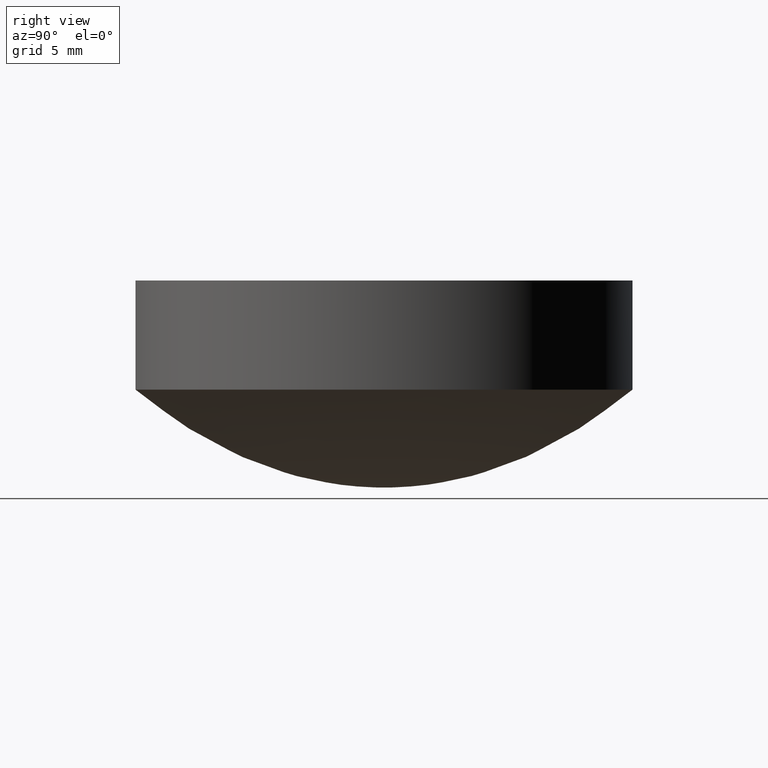
[diagram: clean part render]
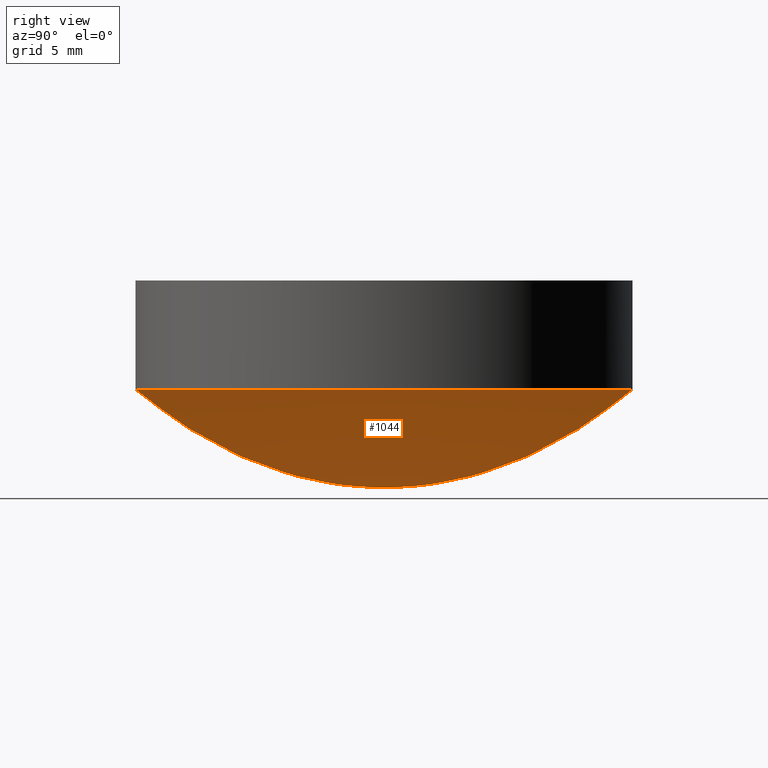
[diagram: same view with one face highlighted and labeled with its STEP entity id]
A machine part, right view. The second image highlights one B-rep face of the part: STEP entity #1044.
In plain terms, the highlighted face is a freeform B-spline surface patch.
Its self-contained STEP definition (entity closure, byte-faithful):
#3 = CARTESIAN_POINT ( 'NONE',  ( 8.802148868871600606E-16, 3.593750000000000000, 0.3204237037430899826 ) ) ;
#4 = CARTESIAN_POINT ( 'NONE',  ( 24.68749999999999645, -12.34375000000000355, 3.928162119119019913 ) ) ;
#7 = CARTESIAN_POINT ( 'NONE',  ( 3.125000000000000000, 1.562499999999999334, 0.05991628856594809899 ) ) ;
#8 = CARTESIAN_POINT ( 'NONE',  ( -1.760429773774320121E-15, -14.37500000000000000, 5.404119466681040151 ) ) ;
#12 = CARTESIAN_POINT ( 'NONE',  ( 5.000000000000000000, 2.499999999999998668, 0.1544825556000629929 ) ) ;
#13 = CARTESIAN_POINT ( 'NONE',  ( 19.06249999999999645, -9.531250000000001776, 2.304130439600900360 ) ) ;
#15 = CARTESIAN_POINT ( 'NONE',  ( 0.000000000000000000, 3.593750000000000000, 0.3204237037430899826 ) ) ;
#16 = CARTESIAN_POINT ( 'NONE',  ( -1.530808498934191571E-16, -1.250000000000000000, 0.03811938227230710075 ) ) ;
#19 = CARTESIAN_POINT ( 'NONE',  ( -1.167241480437320959E-15, -9.531250000000000000, 2.304130439600899916 ) ) ;
#23 = CARTESIAN_POINT ( 'NONE',  ( 9.567553118338697255E-16, 3.906250000000000000, 0.3789155898487329699 ) ) ;
#25 = CARTESIAN_POINT ( 'NONE',  ( 20.93749999999999645, -10.46875000000000178, 2.793584604150720629 ) ) ;
#30 = CARTESIAN_POINT ( 'NONE',  ( 1.250000000000000000, 0.6249999999999996669, 0.009073437160893050787 ) ) ;
#33 = CARTESIAN_POINT ( 'NONE',  ( 17.50000000000000355, 8.749999999999998224, 1.934500196912620096 ) ) ;
#37 = CARTESIAN_POINT ( 'NONE',  ( 2.219672323454577321E-15, 9.062500000000000000, 2.078235659220740050 ) ) ;
#42 = CARTESIAN_POINT ( 'NONE',  ( 10.93749999999999822, -5.468750000000001776, 0.7461025201455739886 ) ) ;
#46 = AXIS2_PLACEMENT_3D ( 'NONE', #199, #120, #447 ) ;
#52 = CARTESIAN_POINT ( 'NONE',  ( -1.760429773774320121E-15, -14.37500000000000000, 5.404119466681040151 ) ) ;
#54 = CARTESIAN_POINT ( 'NONE',  ( 0.000000000000000000, 9.687500000000000000, 2.382193981824380025 ) ) ;
#55 = CARTESIAN_POINT ( 'NONE',  ( -1.358592542804094825E-15, -11.09375000000000000, 3.148338256961699777 ) ) ;
#59 = CARTESIAN_POINT ( 'NONE',  ( 1.301187224094062724E-15, 5.312500000000000000, 0.7037350457089810440 ) ) ;
#62 = CARTESIAN_POINT ( 'NONE',  ( -2.678914873134835310E-16, -2.187500000000000000, 0.1180878847321280012 ) ) ;
#66 = CARTESIAN_POINT ( 'NONE',  ( 0.000000000000000000, 13.43750000000000000, 4.689925512592259871 ) ) ;
#67 = CARTESIAN_POINT ( 'NONE',  ( 1.186376586673998523E-15, 4.843750000000000000, 0.5841957991893280688 ) ) ;
#69 = CARTESIAN_POINT ( 'NONE',  ( -9.950255243072246565E-16, -8.125000000000000000, 1.663313903924069859 ) ) ;
#73 = ORIENTED_EDGE ( 'NONE', *, *, #183, .F. ) ;
#74 = CARTESIAN_POINT ( 'NONE',  ( 1.798699986247674855E-15, 7.343750000000000000, 1.354404919990950029 ) ) ;
#77 = CARTESIAN_POINT ( 'NONE',  ( 3.138157422815092510E-15, 12.81250000000000000, 4.245381271204740514 ) ) ;
#80 = CARTESIAN_POINT ( 'NONE',  ( 0.000000000000000000, 12.81250000000000000, 4.245381271204740514 ) ) ;
#81 = CARTESIAN_POINT ( 'NONE',  ( 1.913510623667739451E-15, 7.812500000000000000, 1.535767496166519974 ) ) ;
#83 = CARTESIAN_POINT ( 'NONE',  ( 28.43749999999999645, 14.21874999999999467, 5.281080162096809971 ) ) ;
#86 = CARTESIAN_POINT ( 'NONE',  ( 0.000000000000000000, 3.125000000000000000, 0.2419397072312180208 ) ) ;
#87 = CARTESIAN_POINT ( 'NONE',  ( -3.061616997868383141E-16, -2.500000000000000000, 0.1544825556000629929 ) ) ;
#88 = CARTESIAN_POINT ( 'NONE',  ( 24.06249999999999645, 12.03124999999999467, 3.724266490961300136 ) ) ;
#92 = CARTESIAN_POINT ( 'NONE',  ( 3.437499999999998668, -1.718750000000000444, 0.07263478165185099922 ) ) ;
#95 = CARTESIAN_POINT ( 'NONE',  ( 4.062499999999999112, -2.031250000000000444, 0.1017205799872320099 ) ) ;
#96 = CARTESIAN_POINT ( 'NONE',  ( 28.75000000000000000, 14.37499999999999467, 5.404119466681040151 ) ) ;
#102 = CARTESIAN_POINT ( 'NONE',  ( 6.249999999999999112, -3.125000000000001332, 0.2419397072312180208 ) ) ;
#103 = CARTESIAN_POINT ( 'NONE',  ( 20.31250000000000000, -10.15625000000000355, 2.624790582178630149 ) ) ;
#107 = CARTESIAN_POINT ( 'NONE',  ( -5.357829746269670620E-16, -4.375000000000000000, 0.4759476878725200089 ) ) ;
#108 = CARTESIAN_POINT ( 'NONE',  ( -1.339457436567417458E-15, -10.93750000000000000, 3.057488923424939831 ) ) ;
#111 =( BOUNDED_SURFACE ( )  B_SPLINE_SURFACE ( 3, 3, ( 
 ( #1010, #917, #761, #1004 ),
 ( #1079, #156, #508, #663 ),
 ( #588, #429, #757, #487 ),
 ( #8, #417, #96, #425 ),
 ( #341, #494, #83, #259 ),
 ( #335, #161, #421, #567 ),
 ( #1085, #500, #676, #929 ),
 ( #1071, #253, #837, #846 ),
 ( #573, #316, #824, #330 ),
 ( #1000, #237, #903, #323 ),
 ( #830, #166, #249, #77 ),
 ( #924, #410, #171, #657 ),
 ( #578, #4, #993, #504 ),
 ( #243, #911, #88, #841 ),
 ( #369, #278, #274, #700 ),
 ( #437, #182, #787, #869 ),
 ( #513, #694, #594, #536 ),
 ( #358, #771, #939, #933 ),
 ( #108, #445, #1028, #851 ),
 ( #776, #600, #188, #123 ),
 ( #1038, #25, #607, #433 ),
 ( #527, #103, #947, #520 ),
 ( #264, #197, #944, #283 ),
 ( #616, #353, #767, #1015 ),
 ( #19, #13, #1033, #856 ),
 ( #348, #783, #687, #612 ),
 ( #864, #530, #119, #37 ),
 ( #193, #1020, #33, #269 ),
 ( #861, #114, #682, #441 ),
 ( #365, #704, #952, #205 ),
 ( #557, #415, #750, #822 ),
 ( #154, #571, #290, #81 ),
 ( #241, #1069, #977, #308 ),
 ( #247, #320, #485, #74 ),
 ( #708, #971, #742, #901 ),
 ( #451, #622, #408, #1006 ),
 ( #1076, #655, #886, #139 ),
 ( #314, #328, #551, #1045 ),
 ( #661, #983, #989, #908 ),
 ( #998, #159, #492, #576 ),
 ( #648, #828, #915, #145 ),
 ( #792, #42, #374, #221 ),
 ( #470, #893, #807, #59 ),
 ( #394, #730, #1063, #478 ),
 ( #642, #227, #816, #67 ),
 ( #401, #736, #235, #565 ),
 ( #107, #1014, #937, #262 ),
 ( #352, #1009, #273, #756 ),
 ( #927, #436, #175, #23 ),
 ( #1025, #420, #581, #3 ),
 ( #432, #672, #357, #680 ),
 ( #922, #102, #775, #267 ),
 ( #691, #187, #346, #170 ),
 ( #334, #604, #164, #518 ),
 ( #87, #587, #12, #667 ),
 ( #497, #835, #252, #844 ),
 ( #1003, #95, #503, #840 ),
 ( #598, #92, #855, #685 ),
 ( #765, #257, #7, #592 ),
 ( #16, #181, #512, #338 ),
 ( #424, #770, #932, #850 ),
 ( #507, #428, #1019, #760 ),
 ( #526, #860, #30, #277 ),
 ( #113, #942, #440, #364 ),
 ( #699, #780, #1031, #192 ),
 ( #923, #339, #212, #540 ) ),
 .UNSPECIFIED., .F., .F., .F. ) 
 B_SPLINE_SURFACE_WITH_KNOTS ( ( 4, 2, 2, 2, 2, 2, 2, 2, 2, 2, 2, 2, 2, 2, 2, 2, 2, 2, 2, 2, 2, 2, 2, 2, 2, 2, 2, 2, 2, 2, 2, 2, 4 ),
 ( 4, 4 ),
 ( -1.000000000000000000, -0.9687500000000000000, -0.9375000000000000000, -0.9062500000000000000, -0.8750000000000000000, -0.8437500000000000000, -0.8125000000000000000, -0.7812500000000000000, -0.7500000000000000000, -0.7187500000000000000, -0.6875000000000000000, -0.6562500000000000000, -0.6250000000000000000, -0.5937500000000000000, -0.5625000000000000000, -0.5312500000000000000, -0.5000000000000000000, -0.4687500000000000000, -0.4375000000000000000, -0.4062500000000000000, -0.3750000000000000000, -0.3437500000000000000, -0.3125000000000000000, -0.2812500000000000000, -0.2500000000000000000, -0.2187500000000000000, -0.1875000000000000000, -0.1562500000000000000, -0.1250000000000000000, -0.09375000000000000000, -0.06250000000000000000, -0.03125000000000000000, 0.000000000000000000 ),
 ( 0.000000000000000000, 1.000000000000000000 ),
 .UNSPECIFIED. ) 
 GEOMETRIC_REPRESENTATION_ITEM ( )  RATIONAL_B_SPLINE_SURFACE ( (
 ( 1.000000000000000000, 0.3333333333333334259, 0.3333333333333334259, 1.000000000000000000),
 ( 1.000000000000000000, 0.3333333333333334259, 0.3333333333333334259, 1.000000000000000000),
 ( 1.000000000000000000, 0.3333333333333334259, 0.3333333333333334259, 1.000000000000000000),
 ( 1.000000000000000000, 0.3333333333333334259, 0.3333333333333334259, 1.000000000000000000),
 ( 1.000000000000000000, 0.3333333333333334259, 0.3333333333333334259, 1.000000000000000000),
 ( 1.000000000000000000, 0.3333333333333334259, 0.3333333333333334259, 1.000000000000000000),
 ( 1.000000000000000000, 0.3333333333333334259, 0.3333333333333334259, 1.000000000000000000),
 ( 1.000000000000000000, 0.3333333333333334259, 0.3333333333333334259, 1.000000000000000000),
 ( 1.000000000000000000, 0.3333333333333334259, 0.3333333333333334259, 1.000000000000000000),
 ( 1.000000000000000000, 0.3333333333333334259, 0.3333333333333334259, 1.000000000000000000),
 ( 1.000000000000000000, 0.3333333333333334259, 0.3333333333333334259, 1.000000000000000000),
 ( 1.000000000000000000, 0.3333333333333334259, 0.3333333333333334259, 1.000000000000000000),
 ( 1.000000000000000000, 0.3333333333333334259, 0.3333333333333334259, 1.000000000000000000),
 ( 1.000000000000000000, 0.3333333333333334259, 0.3333333333333334259, 1.000000000000000000),
 ( 1.000000000000000000, 0.3333333333333334259, 0.3333333333333334259, 1.000000000000000000),
 ( 1.000000000000000000, 0.3333333333333334259, 0.3333333333333334259, 1.000000000000000000),
 ( 1.000000000000000000, 0.3333333333333334259, 0.3333333333333334259, 1.000000000000000000),
 ( 1.000000000000000000, 0.3333333333333334259, 0.3333333333333334259, 1.000000000000000000),
 ( 1.000000000000000000, 0.3333333333333334259, 0.3333333333333334259, 1.000000000000000000),
 ( 1.000000000000000000, 0.3333333333333334259, 0.3333333333333334259, 1.000000000000000000),
 ( 1.000000000000000000, 0.3333333333333334259, 0.3333333333333334259, 1.000000000000000000),
 ( 1.000000000000000000, 0.3333333333333334259, 0.3333333333333334259, 1.000000000000000000),
 ( 1.000000000000000000, 0.3333333333333334259, 0.3333333333333334259, 1.000000000000000000),
 ( 1.000000000000000000, 0.3333333333333334259, 0.3333333333333334259, 1.000000000000000000),
 ( 1.000000000000000000, 0.3333333333333334259, 0.3333333333333334259, 1.000000000000000000),
 ( 1.000000000000000000, 0.3333333333333334259, 0.3333333333333334259, 1.000000000000000000),
 ( 1.000000000000000000, 0.3333333333333334259, 0.3333333333333334259, 1.000000000000000000),
 ( 1.000000000000000000, 0.3333333333333334259, 0.3333333333333334259, 1.000000000000000000),
 ( 1.000000000000000000, 0.3333333333333334259, 0.3333333333333334259, 1.000000000000000000),
 ( 1.000000000000000000, 0.3333333333333334259, 0.3333333333333334259, 1.000000000000000000),
 ( 1.000000000000000000, 0.3333333333333334259, 0.3333333333333334259, 1.000000000000000000),
 ( 1.000000000000000000, 0.3333333333333334259, 0.3333333333333334259, 1.000000000000000000),
 ( 1.000000000000000000, 0.3333333333333334259, 0.3333333333333334259, 1.000000000000000000),
 ( 1.000000000000000000, 0.3333333333333334259, 0.3333333333333334259, 1.000000000000000000),
 ( 1.000000000000000000, 0.3333333333333334259, 0.3333333333333334259, 1.000000000000000000),
 ( 1.000000000000000000, 0.3333333333333334259, 0.3333333333333334259, 1.000000000000000000),
 ( 1.000000000000000000, 0.3333333333333334259, 0.3333333333333334259, 1.000000000000000000),
 ( 1.000000000000000000, 0.3333333333333334259, 0.3333333333333334259, 1.000000000000000000),
 ( 1.000000000000000000, 0.3333333333333334259, 0.3333333333333334259, 1.000000000000000000),
 ( 1.000000000000000000, 0.3333333333333334259, 0.3333333333333334259, 1.000000000000000000),
 ( 1.000000000000000000, 0.3333333333333334259, 0.3333333333333334259, 1.000000000000000000),
 ( 1.000000000000000000, 0.3333333333333334259, 0.3333333333333334259, 1.000000000000000000),
 ( 1.000000000000000000, 0.3333333333333334259, 0.3333333333333334259, 1.000000000000000000),
 ( 1.000000000000000000, 0.3333333333333334259, 0.3333333333333334259, 1.000000000000000000),
 ( 1.000000000000000000, 0.3333333333333334259, 0.3333333333333334259, 1.000000000000000000),
 ( 1.000000000000000000, 0.3333333333333334259, 0.3333333333333334259, 1.000000000000000000),
 ( 1.000000000000000000, 0.3333333333333334259, 0.3333333333333334259, 1.000000000000000000),
 ( 1.000000000000000000, 0.3333333333333334259, 0.3333333333333334259, 1.000000000000000000),
 ( 1.000000000000000000, 0.3333333333333334259, 0.3333333333333334259, 1.000000000000000000),
 ( 1.000000000000000000, 0.3333333333333334259, 0.3333333333333334259, 1.000000000000000000),
 ( 1.000000000000000000, 0.3333333333333334259, 0.3333333333333334259, 1.000000000000000000),
 ( 1.000000000000000000, 0.3333333333333334259, 0.3333333333333334259, 1.000000000000000000),
 ( 1.000000000000000000, 0.3333333333333334259, 0.3333333333333334259, 1.000000000000000000),
 ( 1.000000000000000000, 0.3333333333333334259, 0.3333333333333334259, 1.000000000000000000),
 ( 1.000000000000000000, 0.3333333333333334259, 0.3333333333333334259, 1.000000000000000000),
 ( 1.000000000000000000, 0.3333333333333334259, 0.3333333333333334259, 1.000000000000000000),
 ( 1.000000000000000000, 0.3333333333333334259, 0.3333333333333334259, 1.000000000000000000),
 ( 1.000000000000000000, 0.3333333333333334259, 0.3333333333333334259, 1.000000000000000000),
 ( 1.000000000000000000, 0.3333333333333334259, 0.3333333333333334259, 1.000000000000000000),
 ( 1.000000000000000000, 0.3333333333333334259, 0.3333333333333334259, 1.000000000000000000),
 ( 1.000000000000000000, 0.3333333333333334259, 0.3333333333333334259, 1.000000000000000000),
 ( 1.000000000000000000, 0.3333333333333334259, 0.3333333333333334259, 1.000000000000000000),
 ( 1.000000000000000000, 0.3333333333333334259, 0.3333333333333334259, 1.000000000000000000),
 ( 1.000000000000000000, 0.3333333333333334259, 0.3333333333333334259, 1.000000000000000000),
 ( 1.000000000000000000, 0.3333333333333334259, 0.3333333333333334259, 1.000000000000000000),
 ( 1.000000000000000000, 0.3333333333333334259, 0.3333333333333334259, 1.000000000000000000) ) ) 
 REPRESENTATION_ITEM ( '' )  SURFACE ( )  );
#113 = CARTESIAN_POINT ( 'NONE',  ( -3.827021247335478926E-17, -0.3125000000000000000, 0.001814438714157010036 ) ) ;
#114 = CARTESIAN_POINT ( 'NONE',  ( 17.18749999999999645, -8.593750000000001776, 1.864680354000979978 ) ) ;
#119 = CARTESIAN_POINT ( 'NONE',  ( 18.12500000000000000, 9.062499999999994671, 2.078235659220740050 ) ) ;
#120 = DIRECTION ( 'NONE',  ( 0.000000000000000000, 0.000000000000000000, 1.000000000000000000 ) ) ;
#123 = CARTESIAN_POINT ( 'NONE',  ( 2.602374448188125448E-15, 10.62500000000000000, 2.880112097631259971 ) ) ;
#129 = CARTESIAN_POINT ( 'NONE',  ( -8.802148868871600606E-16, -7.187500000000000000, 1.296588552126309857 ) ) ;
#132 = CARTESIAN_POINT ( 'NONE',  ( -1.243781905384030821E-15, -10.15625000000000000, 2.624790582178630149 ) ) ;
#134 = CARTESIAN_POINT ( 'NONE',  ( 0.000000000000000000, 13.75000000000000000, 4.921610680584799447 ) ) ;
#135 = CARTESIAN_POINT ( 'NONE',  ( -1.626484030117578356E-15, -13.28125000000000000, 4.576455430452989859 ) ) ;
#138 = CARTESIAN_POINT ( 'NONE',  ( 0.000000000000000000, 14.84375000000000000, 5.783048222013719375 ) ) ;
#139 = CARTESIAN_POINT ( 'NONE',  ( 1.645619136354255920E-15, 6.718750000000000000, 1.130971694467530098 ) ) ;
#141 = CARTESIAN_POINT ( 'NONE',  ( -3.827021247335478803E-16, -3.125000000000000000, 0.2419397072312180208 ) ) ;
#145 = CARTESIAN_POINT ( 'NONE',  ( 1.415997861514127123E-15, 5.781250000000000000, 0.8346485693713959764 ) ) ;
#149 = CARTESIAN_POINT ( 'NONE',  ( -1.282052117857385357E-15, -10.46875000000000000, 2.793584604150720185 ) ) ;
#153 = CARTESIAN_POINT ( 'NONE',  ( 0.000000000000000000, 13.90625000000000000, 5.039825773088820071 ) ) ;
#154 = CARTESIAN_POINT ( 'NONE',  ( -9.567553118338697255E-16, -7.812500000000000000, 1.535767496166519974 ) ) ;
#156 = CARTESIAN_POINT ( 'NONE',  ( 29.68749999999998934, -14.84375000000000178, 5.783048222013719375 ) ) ;
#159 = CARTESIAN_POINT ( 'NONE',  ( 11.87499999999999645, -5.937500000000000888, 0.8808271430678311642 ) ) ;
#161 = CARTESIAN_POINT ( 'NONE',  ( 27.81249999999999289, -13.90625000000000178, 5.039825773088820071 ) ) ;
#164 = CARTESIAN_POINT ( 'NONE',  ( 5.312500000000000000, 2.656249999999998668, 0.1745099211040110065 ) ) ;
#166 = CARTESIAN_POINT ( 'NONE',  ( 25.62499999999998934, -12.81250000000000355, 4.245381271204740514 ) ) ;
#169 = CARTESIAN_POINT ( 'NONE',  ( 0.000000000000000000, 4.531250000000000000, 0.5107788002609389144 ) ) ;
#170 = CARTESIAN_POINT ( 'NONE',  ( 7.271340369937410268E-16, 2.968750000000000000, 0.2182384972824339964 ) ) ;
#171 = CARTESIAN_POINT ( 'NONE',  ( 25.00000000000000000, 12.49999999999999467, 4.032370676684720046 ) ) ;
#174 = CARTESIAN_POINT ( 'NONE',  ( 0.000000000000000000, 4.843750000000000000, 0.5841957991893280688 ) ) ;
#175 = CARTESIAN_POINT ( 'NONE',  ( 7.812499999999999112, 3.906249999999998224, 0.3789155898487330254 ) ) ;
#177 = CARTESIAN_POINT ( 'NONE',  ( -7.654042494670957853E-17, -0.6250000000000000000, 0.009073437160893050787 ) ) ;
#180 = CARTESIAN_POINT ( 'NONE',  ( 0.000000000000000000, 2.656250000000000000, 0.1745099211040110065 ) ) ;
#181 = CARTESIAN_POINT ( 'NONE',  ( 2.499999999999999556, -1.250000000000000222, 0.03811938227230710075 ) ) ;
#182 = CARTESIAN_POINT ( 'NONE',  ( 23.12499999999999645, -11.56250000000000355, 3.429657426633299533 ) ) ;
#183 = EDGE_CURVE ( 'NONE', #960, #703, #606, .T. ) ;
#187 = CARTESIAN_POINT ( 'NONE',  ( 5.937499999999998224, -2.968750000000000444, 0.2182384972824339686 ) ) ;
#188 = CARTESIAN_POINT ( 'NONE',  ( 21.25000000000000000, 10.62499999999999467, 2.880112097631259971 ) ) ;
#192 = CARTESIAN_POINT ( 'NONE',  ( 3.827021247335478926E-17, 0.1562500000000000000, 0.000000000000000000 ) ) ;
#193 = CARTESIAN_POINT ( 'NONE',  ( -1.071565949253934124E-15, -8.750000000000000000, 1.934500196912620096 ) ) ;
#197 = CARTESIAN_POINT ( 'NONE',  ( 19.99999999999999645, -10.00000000000000178, 2.542524052966009585 ) ) ;
#199 = CARTESIAN_POINT ( 'NONE',  ( 0.000000000000000000, 0.000000000000000000, 5.913487138830709533 ) ) ;
#204 = ORIENTED_EDGE ( 'NONE', *, *, #955, .T. ) ;
#205 = CARTESIAN_POINT ( 'NONE',  ( 2.028321261087804047E-15, 8.281250000000000000, 1.729087207217520072 ) ) ;
#210 = CARTESIAN_POINT ( 'NONE',  ( -3.252968060235156810E-16, -2.656250000000000000, 0.1745099211040110065 ) ) ;
#212 = CARTESIAN_POINT ( 'NONE',  ( 0.000000000000000000, 0.000000000000000000, 0.000000000000000000 ) ) ;
#214 = CARTESIAN_POINT ( 'NONE',  ( -1.683889348827610654E-15, -13.75000000000000000, 4.921610680584799447 ) ) ;
#217 = CARTESIAN_POINT ( 'NONE',  ( 0.000000000000000000, 13.28125000000000000, 4.576455430452989859 ) ) ;
#218 = CARTESIAN_POINT ( 'NONE',  ( -8.228095681771279600E-16, -6.718750000000000000, 1.130971694467530098 ) ) ;
#220 = CARTESIAN_POINT ( 'NONE',  ( 0.000000000000000000, 6.406250000000000000, 1.027049538622569980 ) ) ;
#221 = CARTESIAN_POINT ( 'NONE',  ( 1.339457436567417458E-15, 5.468750000000000000, 0.7461025201455739886 ) ) ;
#223 = CARTESIAN_POINT ( 'NONE',  ( -4.975127621536123282E-16, -4.062500000000000000, 0.4100160821757170559 ) ) ;
#227 = CARTESIAN_POINT ( 'NONE',  ( 9.687499999999998224, -4.843750000000000000, 0.5841957991893280688 ) ) ;
#230 = CARTESIAN_POINT ( 'NONE',  ( -1.014160630543902023E-15, -8.281250000000000000, 1.729087207217520072 ) ) ;
#234 = CARTESIAN_POINT ( 'NONE',  ( 0.000000000000000000, 7.656250000000000000, 1.473994392457079750 ) ) ;
#235 = CARTESIAN_POINT ( 'NONE',  ( 9.062500000000000000, 4.531249999999997335, 0.5107788002609389144 ) ) ;
#237 = CARTESIAN_POINT ( 'NONE',  ( 25.93749999999999289, -12.96875000000000178, 4.354183312459039890 ) ) ;
#241 = CARTESIAN_POINT ( 'NONE',  ( -9.376202055971923586E-16, -7.656250000000000000, 1.473994392457079750 ) ) ;
#243 = CARTESIAN_POINT ( 'NONE',  ( -1.473403180224159421E-15, -12.03125000000000000, 3.724266490961300136 ) ) ;
#246 = CARTESIAN_POINT ( 'NONE',  ( 0.000000000000000000, 1.718750000000000000, 0.07263478165185099922 ) ) ;
#247 = CARTESIAN_POINT ( 'NONE',  ( -8.993499931238374275E-16, -7.343750000000000000, 1.354404919990950029 ) ) ;
#249 = CARTESIAN_POINT ( 'NONE',  ( 25.62499999999999645, 12.81249999999999289, 4.245381271204740514 ) ) ;
#252 = CARTESIAN_POINT ( 'NONE',  ( 4.375000000000000888, 2.187499999999999556, 0.1180878847321280012 ) ) ;
#253 = CARTESIAN_POINT ( 'NONE',  ( 26.87499999999999289, -13.43750000000000178, 4.689925512592259871 ) ) ;
#256 = CARTESIAN_POINT ( 'NONE',  ( 0.000000000000000000, 2.500000000000000000, 0.1544825556000629929 ) ) ;
#257 = CARTESIAN_POINT ( 'NONE',  ( 3.124999999999999556, -1.562500000000000666, 0.05991628856594809899 ) ) ;
#259 = CARTESIAN_POINT ( 'NONE',  ( 3.482589335075285509E-15, 14.21875000000000000, 5.281080162096809971 ) ) ;
#262 = CARTESIAN_POINT ( 'NONE',  ( 1.071565949253934124E-15, 4.375000000000000000, 0.4759476878725200089 ) ) ;
#264 = CARTESIAN_POINT ( 'NONE',  ( -1.224646799147353256E-15, -10.00000000000000000, 2.542524052966009585 ) ) ;
#266 = CARTESIAN_POINT ( 'NONE',  ( 0.000000000000000000, 0.1562500000000000000, 0.000000000000000000 ) ) ;
#267 = CARTESIAN_POINT ( 'NONE',  ( 7.654042494670957606E-16, 3.125000000000000000, 0.2419397072312180208 ) ) ;
#269 = CARTESIAN_POINT ( 'NONE',  ( 2.143131898507868248E-15, 8.750000000000000000, 1.934500196912620096 ) ) ;
#273 = CARTESIAN_POINT ( 'NONE',  ( 8.125000000000000000, 4.062499999999998224, 0.4100160821757170559 ) ) ;
#274 = CARTESIAN_POINT ( 'NONE',  ( 23.74999999999999289, 11.87499999999999467, 3.624579417023470196 ) ) ;
#277 = CARTESIAN_POINT ( 'NONE',  ( 1.530808498934191571E-16, 0.6250000000000000000, 0.009073437160893050787 ) ) ;
#278 = CARTESIAN_POINT ( 'NONE',  ( 23.74999999999999289, -11.87500000000000178, 3.624579417023470196 ) ) ;
#283 = CARTESIAN_POINT ( 'NONE',  ( 2.449293598294706513E-15, 10.00000000000000000, 2.542524052966009585 ) ) ;
#290 = CARTESIAN_POINT ( 'NONE',  ( 15.62499999999999822, 7.812499999999996447, 1.535767496166519974 ) ) ;
#292 = CARTESIAN_POINT ( 'NONE',  ( -1.186376586673998523E-15, -9.687500000000000000, 2.382193981824380025 ) ) ;
#295 = CARTESIAN_POINT ( 'NONE',  ( -1.396862755277449756E-15, -11.40625000000000000, 3.334422507651929823 ) ) ;
#298 = CARTESIAN_POINT ( 'NONE',  ( 0.000000000000000000, 11.56250000000000000, 3.429657426633299977 ) ) ;
#299 = CARTESIAN_POINT ( 'NONE',  ( -1.052430843017256757E-15, -8.593750000000000000, 1.864680354000979756 ) ) ;
#302 = CARTESIAN_POINT ( 'NONE',  ( 0.000000000000000000, 7.187500000000000000, 1.296588552126309857 ) ) ;
#304 = CARTESIAN_POINT ( 'NONE',  ( -1.167241480437320959E-15, -9.531250000000000000, 2.304130439600899916 ) ) ;
#307 = CARTESIAN_POINT ( 'NONE',  ( 0.000000000000000000, 10.62500000000000000, 2.880112097631259971 ) ) ;
#308 = CARTESIAN_POINT ( 'NONE',  ( 1.875240411194384717E-15, 7.656250000000000000, 1.473994392457079750 ) ) ;
#310 = CARTESIAN_POINT ( 'NONE',  ( -7.654042494670957606E-16, -6.250000000000000000, 0.9770276282365498721 ) ) ;
#314 = CARTESIAN_POINT ( 'NONE',  ( -7.845393557037731275E-16, -6.406250000000000000, 1.027049538622569980 ) ) ;
#316 = CARTESIAN_POINT ( 'NONE',  ( 26.56249999999998934, -13.28125000000000355, 4.576455430452990747 ) ) ;
#319 = CARTESIAN_POINT ( 'NONE',  ( 0.000000000000000000, 9.062500000000000000, 2.078235659220740050 ) ) ;
#320 = CARTESIAN_POINT ( 'NONE',  ( 14.68749999999999467, -7.343750000000001776, 1.354404919990950029 ) ) ;
#323 = CARTESIAN_POINT ( 'NONE',  ( 3.176427635288447244E-15, 12.96875000000000000, 4.354183312459039890 ) ) ;
#328 = CARTESIAN_POINT ( 'NONE',  ( 12.81249999999999467, -6.406250000000001776, 1.027049538622569758 ) ) ;
#330 = CARTESIAN_POINT ( 'NONE',  ( 3.252968060235156712E-15, 13.28125000000000000, 4.576455430452989859 ) ) ;
#334 = CARTESIAN_POINT ( 'NONE',  ( -3.252968060235156810E-16, -2.656250000000000000, 0.1745099211040110065 ) ) ;
#335 = CARTESIAN_POINT ( 'NONE',  ( -1.703024455064288218E-15, -13.90625000000000000, 5.039825773088820071 ) ) ;
#338 = CARTESIAN_POINT ( 'NONE',  ( 3.061616997868383141E-16, 1.250000000000000000, 0.03811938227230710075 ) ) ;
#339 = CARTESIAN_POINT ( 'NONE',  ( 0.000000000000000000, 0.000000000000000000, 0.000000000000000000 ) ) ;
#341 = CARTESIAN_POINT ( 'NONE',  ( -1.741294667537642754E-15, -14.21875000000000000, 5.281080162096809971 ) ) ;
#343 = CIRCLE ( 'NONE', #46, 15.00000000000000000 ) ;
#346 = CARTESIAN_POINT ( 'NONE',  ( 5.937499999999998224, 2.968749999999998668, 0.2182384972824339686 ) ) ;
#348 = CARTESIAN_POINT ( 'NONE',  ( -1.128971267963966225E-15, -9.218750000000000000, 2.152151278271710044 ) ) ;
#351 = CARTESIAN_POINT ( 'NONE',  ( 0.000000000000000000, 0.3125000000000000000, 0.001814438714157010036 ) ) ;
#352 = CARTESIAN_POINT ( 'NONE',  ( -4.975127621536123282E-16, -4.062500000000000000, 0.4100160821757170559 ) ) ;
#353 = CARTESIAN_POINT ( 'NONE',  ( 19.37499999999999645, -9.687500000000000000, 2.382193981824380025 ) ) ;
#357 = CARTESIAN_POINT ( 'NONE',  ( 6.874999999999999112, 3.437499999999998224, 0.2930323108724959824 ) ) ;
#358 = CARTESIAN_POINT ( 'NONE',  ( -1.358592542804094825E-15, -11.09375000000000000, 3.148338256961699777 ) ) ;
#364 = CARTESIAN_POINT ( 'NONE',  ( 7.654042494670957853E-17, 0.3125000000000000000, 0.001814438714157010036 ) ) ;
#365 = CARTESIAN_POINT ( 'NONE',  ( -1.014160630543902023E-15, -8.281250000000000000, 1.729087207217520072 ) ) ;
#369 = CARTESIAN_POINT ( 'NONE',  ( -1.454268073987482054E-15, -11.87500000000000000, 3.624579417023469752 ) ) ;
#374 = CARTESIAN_POINT ( 'NONE',  ( 10.93750000000000000, 5.468749999999997335, 0.7461025201455739886 ) ) ;
#381 = CARTESIAN_POINT ( 'NONE',  ( -4.401074434435800303E-16, -3.593750000000000000, 0.3204237037430899826 ) ) ;
#383 = CARTESIAN_POINT ( 'NONE',  ( -1.511673392697514154E-15, -12.34375000000000000, 3.928162119119019913 ) ) ;
#386 = CARTESIAN_POINT ( 'NONE',  ( 0.000000000000000000, 8.281250000000000000, 1.729087207217520072 ) ) ;
#388 = CARTESIAN_POINT ( 'NONE',  ( -7.845393557037731275E-16, -6.406250000000000000, 1.027049538622569980 ) ) ;
#394 = CARTESIAN_POINT ( 'NONE',  ( -6.123233995736766282E-16, -5.000000000000000000, 0.6227816846932039407 ) ) ;
#397 = CARTESIAN_POINT ( 'NONE',  ( -1.109836161727288661E-15, -9.062500000000000000, 2.078235659220740050 ) ) ;
#400 = CARTESIAN_POINT ( 'NONE',  ( 0.000000000000000000, 12.34375000000000000, 3.928162119119019913 ) ) ;
#401 = CARTESIAN_POINT ( 'NONE',  ( -5.549180808636443303E-16, -4.531250000000000000, 0.5107788002609389144 ) ) ;
#403 = CARTESIAN_POINT ( 'NONE',  ( -1.817835092484352222E-15, -14.84375000000000000, 5.783048222013719375 ) ) ;
#408 = CARTESIAN_POINT ( 'NONE',  ( 13.74999999999999822, 6.874999999999996447, 1.184871938868480079 ) ) ;
#410 = CARTESIAN_POINT ( 'NONE',  ( 24.99999999999999645, -12.50000000000000533, 4.032370676684720046 ) ) ;
#413 = CARTESIAN_POINT ( 'NONE',  ( 0.000000000000000000, 11.87500000000000000, 3.624579417023469752 ) ) ;
#415 = CARTESIAN_POINT ( 'NONE',  ( 16.24999999999999645, -8.125000000000001776, 1.663313903924069859 ) ) ;
#417 = CARTESIAN_POINT ( 'NONE',  ( 28.74999999999998934, -14.37500000000000533, 5.404119466681040151 ) ) ;
#419 = CARTESIAN_POINT ( 'NONE',  ( 0.000000000000000000, 2.968750000000000000, 0.2182384972824339964 ) ) ;
#420 = CARTESIAN_POINT ( 'NONE',  ( 7.187499999999997335, -3.593750000000001332, 0.3204237037430899826 ) ) ;
#421 = CARTESIAN_POINT ( 'NONE',  ( 27.81249999999999289, 13.90624999999999112, 5.039825773088820071 ) ) ;
#423 = CARTESIAN_POINT ( 'NONE',  ( 0.000000000000000000, 0.000000000000000000, 0.000000000000000000 ) ) ;
#424 = CARTESIAN_POINT ( 'NONE',  ( -1.339457436567417655E-16, -1.093750000000000000, 0.02904096944840869887 ) ) ;
#425 = CARTESIAN_POINT ( 'NONE',  ( 3.520859547548640243E-15, 14.37500000000000000, 5.404119466681040151 ) ) ;
#428 = CARTESIAN_POINT ( 'NONE',  ( 1.562499999999999778, -0.7812500000000003331, 0.01451799676346220147 ) ) ;
#429 = CARTESIAN_POINT ( 'NONE',  ( 29.37499999999998934, -14.68750000000000355, 5.655103491778290525 ) ) ;
#432 = CARTESIAN_POINT ( 'NONE',  ( -4.209723372069026634E-16, -3.437500000000000000, 0.2930323108724959824 ) ) ;
#433 = CARTESIAN_POINT ( 'NONE',  ( 2.564104235714770714E-15, 10.46875000000000000, 2.793584604150720185 ) ) ;
#436 = CARTESIAN_POINT ( 'NONE',  ( 7.812499999999997335, -3.906250000000000888, 0.3789155898487330254 ) ) ;
#437 = CARTESIAN_POINT ( 'NONE',  ( -1.415997861514127123E-15, -11.56250000000000000, 3.429657426633299977 ) ) ;
#440 = CARTESIAN_POINT ( 'NONE',  ( 0.6250000000000000000, 0.3124999999999998335, 0.001814438714157010036 ) ) ;
#441 = CARTESIAN_POINT ( 'NONE',  ( 2.104861686034513514E-15, 8.593750000000000000, 1.864680354000979756 ) ) ;
#445 = CARTESIAN_POINT ( 'NONE',  ( 21.87499999999999645, -10.93750000000000355, 3.057488923424939831 ) ) ;
#447 = DIRECTION ( 'NONE',  ( 0.000000000000000000, 1.000000000000000000, 0.000000000000000000 ) ) ;
#451 = CARTESIAN_POINT ( 'NONE',  ( -8.419446744138053269E-16, -6.875000000000000000, 1.184871938868480079 ) ) ;
#456 = VERTEX_POINT ( 'NONE', #666 ) ;
#457 = CARTESIAN_POINT ( 'NONE',  ( -1.645619136354255920E-15, -13.43750000000000000, 4.689925512592259871 ) ) ;
#465 = CARTESIAN_POINT ( 'NONE',  ( 0.000000000000000000, 8.750000000000000000, 1.934500196912620096 ) ) ;
#466 = CARTESIAN_POINT ( 'NONE',  ( -1.415997861514127123E-15, -11.56250000000000000, 3.429657426633299977 ) ) ;
#470 = CARTESIAN_POINT ( 'NONE',  ( -6.505936120470313620E-16, -5.312500000000000000, 0.7037350457089810440 ) ) ;
#472 = CARTESIAN_POINT ( 'NONE',  ( -5.357829746269670620E-16, -4.375000000000000000, 0.4759476878725200089 ) ) ;
#478 = CARTESIAN_POINT ( 'NONE',  ( 1.224646799147353256E-15, 5.000000000000000000, 0.6227816846932039407 ) ) ;
#480 = CARTESIAN_POINT ( 'NONE',  ( -1.741294667537642754E-15, -14.21875000000000000, 5.281080162096809971 ) ) ;
#485 = CARTESIAN_POINT ( 'NONE',  ( 14.68749999999999822, 7.343749999999996447, 1.354404919990950029 ) ) ;
#487 = CARTESIAN_POINT ( 'NONE',  ( 3.597399972495349710E-15, 14.68750000000000000, 5.655103491778289637 ) ) ;
#492 = CARTESIAN_POINT ( 'NONE',  ( 11.87499999999999645, 5.937499999999997335, 0.8808271430678311642 ) ) ;
#494 = CARTESIAN_POINT ( 'NONE',  ( 28.43749999999999645, -14.21875000000000355, 5.281080162096809971 ) ) ;
#496 = CARTESIAN_POINT ( 'NONE',  ( 0.000000000000000000, 0.6250000000000000000, 0.009073437160893050787 ) ) ;
#497 = CARTESIAN_POINT ( 'NONE',  ( -2.678914873134835310E-16, -2.187500000000000000, 0.1180878847321280012 ) ) ;
#500 = CARTESIAN_POINT ( 'NONE',  ( 27.49999999999998934, -13.75000000000000355, 4.921610680584799447 ) ) ;
#502 = CARTESIAN_POINT ( 'NONE',  ( 0.000000000000000000, 0.7812500000000000000, 0.01451799676346219974 ) ) ;
#503 = CARTESIAN_POINT ( 'NONE',  ( 4.062500000000000000, 2.031249999999999112, 0.1017205799872320099 ) ) ;
#504 = CARTESIAN_POINT ( 'NONE',  ( 3.023346785395028309E-15, 12.34375000000000000, 3.928162119119019913 ) ) ;
#506 = CARTESIAN_POINT ( 'NONE',  ( 0.000000000000000000, 1.093750000000000000, 0.02904096944840869887 ) ) ;
#507 = CARTESIAN_POINT ( 'NONE',  ( -9.567553118338697008E-17, -0.7812500000000000000, 0.01451799676346219974 ) ) ;
#508 = CARTESIAN_POINT ( 'NONE',  ( 29.68749999999999289, 14.84374999999999112, 5.783048222013719375 ) ) ;
#511 = CARTESIAN_POINT ( 'NONE',  ( 0.000000000000000000, 0.000000000000000000, 0.000000000000000000 ) ) ;
#512 = CARTESIAN_POINT ( 'NONE',  ( 2.500000000000000000, 1.249999999999999334, 0.03811938227230710075 ) ) ;
#513 = CARTESIAN_POINT ( 'NONE',  ( -1.396862755277449756E-15, -11.40625000000000000, 3.334422507651929823 ) ) ;
#518 = CARTESIAN_POINT ( 'NONE',  ( 6.505936120470313620E-16, 2.656250000000000000, 0.1745099211040110065 ) ) ;
#520 = CARTESIAN_POINT ( 'NONE',  ( 2.487563810768061641E-15, 10.15625000000000000, 2.624790582178630149 ) ) ;
#526 = CARTESIAN_POINT ( 'NONE',  ( -7.654042494670957853E-17, -0.6250000000000000000, 0.009073437160893050787 ) ) ;
#527 = CARTESIAN_POINT ( 'NONE',  ( -1.243781905384030821E-15, -10.15625000000000000, 2.624790582178630149 ) ) ;
#530 = CARTESIAN_POINT ( 'NONE',  ( 18.12499999999999645, -9.062500000000000000, 2.078235659220740050 ) ) ;
#536 = CARTESIAN_POINT ( 'NONE',  ( 2.793725510554899512E-15, 11.40625000000000000, 3.334422507651929823 ) ) ;
#540 = CARTESIAN_POINT ( 'NONE',  ( 0.000000000000000000, 0.000000000000000000, 0.000000000000000000 ) ) ;
#542 = CARTESIAN_POINT ( 'NONE',  ( 1.836970198721029589E-15, -15.00000000000000000, 5.913487138830709533 ) ) ;
#544 = CARTESIAN_POINT ( 'NONE',  ( -1.339457436567417655E-16, -1.093750000000000000, 0.02904096944840869887 ) ) ;
#548 = CARTESIAN_POINT ( 'NONE',  ( -1.588213817644223622E-15, -12.96875000000000000, 4.354183312459039890 ) ) ;
#551 = CARTESIAN_POINT ( 'NONE',  ( 12.81249999999999822, 6.406249999999996447, 1.027049538622569758 ) ) ;
#553 = CARTESIAN_POINT ( 'NONE',  ( -1.798699986247674855E-15, -14.68750000000000000, 5.655103491778289637 ) ) ;
#557 = CARTESIAN_POINT ( 'NONE',  ( -9.950255243072246565E-16, -8.125000000000000000, 1.663313903924069859 ) ) ;
#560 = CARTESIAN_POINT ( 'NONE',  ( -1.569078711407546255E-15, -12.81250000000000000, 4.245381271204740514 ) ) ;
#564 = CARTESIAN_POINT ( 'NONE',  ( 0.000000000000000000, 7.343750000000000000, 1.354404919990950029 ) ) ;
#565 = CARTESIAN_POINT ( 'NONE',  ( 1.109836161727288661E-15, 4.531250000000000000, 0.5107788002609389144 ) ) ;
#567 = CARTESIAN_POINT ( 'NONE',  ( 3.406048910128576436E-15, 13.90625000000000000, 5.039825773088820071 ) ) ;
#571 = CARTESIAN_POINT ( 'NONE',  ( 15.62499999999999467, -7.812500000000001776, 1.535767496166519974 ) ) ;
#573 = CARTESIAN_POINT ( 'NONE',  ( -1.626484030117578356E-15, -13.28125000000000000, 4.576455430452989859 ) ) ;
#576 = CARTESIAN_POINT ( 'NONE',  ( 1.454268073987482054E-15, 5.937500000000000000, 0.8808271430678310532 ) ) ;
#578 = CARTESIAN_POINT ( 'NONE',  ( -1.511673392697514154E-15, -12.34375000000000000, 3.928162119119019913 ) ) ;
#580 = CARTESIAN_POINT ( 'NONE',  ( 0.000000000000000000, 5.937500000000000000, 0.8808271430678310532 ) ) ;
#581 = CARTESIAN_POINT ( 'NONE',  ( 7.187500000000000000, 3.593749999999998668, 0.3204237037430899826 ) ) ;
#584 = CARTESIAN_POINT ( 'NONE',  ( -3.827021247335478926E-17, -0.3125000000000000000, 0.001814438714157010036 ) ) ;
#587 = CARTESIAN_POINT ( 'NONE',  ( 4.999999999999999112, -2.500000000000000444, 0.1544825556000629929 ) ) ;
#588 = CARTESIAN_POINT ( 'NONE',  ( -1.798699986247674855E-15, -14.68750000000000000, 5.655103491778289637 ) ) ;
#591 = CARTESIAN_POINT ( 'NONE',  ( 0.000000000000000000, 3.437500000000000000, 0.2930323108724959824 ) ) ;
#592 = CARTESIAN_POINT ( 'NONE',  ( 3.827021247335478803E-16, 1.562500000000000000, 0.05991628856594809899 ) ) ;
#594 = CARTESIAN_POINT ( 'NONE',  ( 22.81250000000000000, 11.40624999999999467, 3.334422507651929823 ) ) ;
#597 = CARTESIAN_POINT ( 'NONE',  ( 0.000000000000000000, 2.187500000000000000, 0.1180878847321280012 ) ) ;
#598 = CARTESIAN_POINT ( 'NONE',  ( -2.104861686034513317E-16, -1.718750000000000000, 0.07263478165185099922 ) ) ;
#600 = CARTESIAN_POINT ( 'NONE',  ( 21.25000000000000000, -10.62500000000000533, 2.880112097631259971 ) ) ;
#604 = CARTESIAN_POINT ( 'NONE',  ( 5.312500000000000000, -2.656250000000001332, 0.1745099211040110065 ) ) ;
#606 = B_SPLINE_CURVE_WITH_KNOTS ( 'NONE', 3,
 ( #802, #138, #729, #827, #900, #153, #134, #66, #217, #630, #80, #741, #400, #885, #413, #298, #647, #1062, #1074, #307, #641, #882, #976, #54, #988, #735, #319, #465, #654, #386, #1057, #982, #234, #564, #302, #636, #970, #220, #931, #580, #997, #1012, #849, #1008, #174, #169, #1018, #660, #1002, #15, #591, #86, #419, #180, #256, #597, #834, #246, #839, #936, #506, #502, #496, #351, #266, #511 ),
 .UNSPECIFIED., .F., .F.,
 ( 4, 2, 2, 2, 2, 2, 2, 2, 2, 2, 2, 2, 2, 2, 2, 2, 2, 2, 2, 2, 2, 2, 2, 2, 2, 2, 2, 2, 2, 2, 2, 2, 4 ),
 ( -1.000000000000000000, -0.9687500000000000000, -0.9375000000000000000, -0.9062500000000000000, -0.8750000000000000000, -0.8437500000000000000, -0.8125000000000000000, -0.7812500000000000000, -0.7500000000000000000, -0.7187500000000000000, -0.6875000000000000000, -0.6562500000000000000, -0.6250000000000000000, -0.5937500000000000000, -0.5625000000000000000, -0.5312500000000000000, -0.5000000000000000000, -0.4687500000000000000, -0.4375000000000000000, -0.4062500000000000000, -0.3750000000000000000, -0.3437500000000000000, -0.3125000000000000000, -0.2812500000000000000, -0.2500000000000000000, -0.2187500000000000000, -0.1875000000000000000, -0.1562500000000000000, -0.1250000000000000000, -0.09375000000000000000, -0.06250000000000000000, -0.03125000000000000000, 0.000000000000000000 ),
 .UNSPECIFIED. ) ;
#607 = CARTESIAN_POINT ( 'NONE',  ( 20.93750000000000000, 10.46874999999999645, 2.793584604150720629 ) ) ;
#612 = CARTESIAN_POINT ( 'NONE',  ( 2.257942535927932450E-15, 9.218750000000000000, 2.152151278271710044 ) ) ;
#616 = CARTESIAN_POINT ( 'NONE',  ( -1.186376586673998523E-15, -9.687500000000000000, 2.382193981824380025 ) ) ;
#622 = CARTESIAN_POINT ( 'NONE',  ( 13.74999999999999467, -6.875000000000001776, 1.184871938868480079 ) ) ;
#624 = CARTESIAN_POINT ( 'NONE',  ( -7.271340369937410268E-16, -5.937500000000000000, 0.8808271430678310532 ) ) ;
#626 = ORIENTED_EDGE ( 'NONE', *, *, #912, .F. ) ;
#627 = CARTESIAN_POINT ( 'NONE',  ( -1.913510623667739402E-16, -1.562500000000000000, 0.05991628856594809899 ) ) ;
#630 = CARTESIAN_POINT ( 'NONE',  ( 0.000000000000000000, 12.96875000000000000, 4.354183312459039890 ) ) ;
#632 = CARTESIAN_POINT ( 'NONE',  ( -9.376202055971923586E-16, -7.656250000000000000, 1.473994392457079750 ) ) ;
#636 = CARTESIAN_POINT ( 'NONE',  ( 0.000000000000000000, 6.875000000000000000, 1.184871938868480079 ) ) ;
#638 = CARTESIAN_POINT ( 'NONE',  ( -9.567553118338697255E-16, -7.812500000000000000, 1.535767496166519974 ) ) ;
#641 = CARTESIAN_POINT ( 'NONE',  ( 0.000000000000000000, 10.46875000000000000, 2.793584604150720185 ) ) ;
#642 = CARTESIAN_POINT ( 'NONE',  ( -5.931882933369992613E-16, -4.843750000000000000, 0.5841957991893280688 ) ) ;
#644 = CARTESIAN_POINT ( 'NONE',  ( -6.123233995736766282E-16, -5.000000000000000000, 0.6227816846932039407 ) ) ;
#647 = CARTESIAN_POINT ( 'NONE',  ( 0.000000000000000000, 11.40625000000000000, 3.334422507651929823 ) ) ;
#648 = CARTESIAN_POINT ( 'NONE',  ( -7.079989307570635613E-16, -5.781250000000000000, 0.8346485693713959764 ) ) ;
#650 = CARTESIAN_POINT ( 'NONE',  ( 0.000000000000000000, 0.000000000000000000, 0.000000000000000000 ) ) ;
#654 = CARTESIAN_POINT ( 'NONE',  ( 0.000000000000000000, 8.593750000000000000, 1.864680354000979756 ) ) ;
#655 = CARTESIAN_POINT ( 'NONE',  ( 13.43749999999999645, -6.718750000000000888, 1.130971694467529876 ) ) ;
#657 = CARTESIAN_POINT ( 'NONE',  ( 3.061616997868383043E-15, 12.50000000000000000, 4.032370676684720046 ) ) ;
#660 = CARTESIAN_POINT ( 'NONE',  ( 0.000000000000000000, 4.062500000000000000, 0.4100160821757170559 ) ) ;
#661 = CARTESIAN_POINT ( 'NONE',  ( -7.654042494670957606E-16, -6.250000000000000000, 0.9770276282365498721 ) ) ;
#663 = CARTESIAN_POINT ( 'NONE',  ( 3.635670184968704444E-15, 14.84375000000000000, 5.783048222013719375 ) ) ;
#666 = CARTESIAN_POINT ( 'NONE',  ( 1.836970198721029589E-15, -15.00000000000000000, 5.913487138830709533 ) ) ;
#667 = CARTESIAN_POINT ( 'NONE',  ( 6.123233995736766282E-16, 2.500000000000000000, 0.1544825556000629929 ) ) ;
#668 = CARTESIAN_POINT ( 'NONE',  ( -9.567553118338697008E-17, -0.7812500000000000000, 0.01451799676346219974 ) ) ;
#672 = CARTESIAN_POINT ( 'NONE',  ( 6.874999999999997335, -3.437500000000000888, 0.2930323108724959824 ) ) ;
#676 = CARTESIAN_POINT ( 'NONE',  ( 27.49999999999999645, 13.74999999999999289, 4.921610680584799447 ) ) ;
#680 = CARTESIAN_POINT ( 'NONE',  ( 8.419446744138053269E-16, 3.437500000000000000, 0.2930323108724959824 ) ) ;
#682 = CARTESIAN_POINT ( 'NONE',  ( 17.18750000000000000, 8.593749999999996447, 1.864680354000979978 ) ) ;
#685 = CARTESIAN_POINT ( 'NONE',  ( 4.209723372069026634E-16, 1.718750000000000000, 0.07263478165185099922 ) ) ;
#687 = CARTESIAN_POINT ( 'NONE',  ( 18.43750000000000000, 9.218749999999994671, 2.152151278271710044 ) ) ;
#691 = CARTESIAN_POINT ( 'NONE',  ( -3.635670184968705134E-16, -2.968750000000000000, 0.2182384972824339964 ) ) ;
#694 = CARTESIAN_POINT ( 'NONE',  ( 22.81249999999999289, -11.40625000000000178, 3.334422507651929823 ) ) ;
#699 = CARTESIAN_POINT ( 'NONE',  ( -1.913510623667739463E-17, -0.1562500000000000000, 0.000000000000000000 ) ) ;
#700 = CARTESIAN_POINT ( 'NONE',  ( 2.908536147974964107E-15, 11.87500000000000000, 3.624579417023469752 ) ) ;
#703 = VERTEX_POINT ( 'NONE', #423 ) ;
#704 = CARTESIAN_POINT ( 'NONE',  ( 16.56249999999999645, -8.281250000000001776, 1.729087207217519850 ) ) ;
#708 = CARTESIAN_POINT ( 'NONE',  ( -8.802148868871600606E-16, -7.187500000000000000, 1.296588552126309857 ) ) ;
#714 = CARTESIAN_POINT ( 'NONE',  ( -3.061616997868383141E-16, -2.500000000000000000, 0.1544825556000629929 ) ) ;
#719 = CARTESIAN_POINT ( 'NONE',  ( -1.128971267963966225E-15, -9.218750000000000000, 2.152151278271710044 ) ) ;
#724 = CARTESIAN_POINT ( 'NONE',  ( -8.993499931238374275E-16, -7.343750000000000000, 1.354404919990950029 ) ) ;
#729 = CARTESIAN_POINT ( 'NONE',  ( 0.000000000000000000, 14.68750000000000000, 5.655103491778289637 ) ) ;
#730 = CARTESIAN_POINT ( 'NONE',  ( 9.999999999999998224, -5.000000000000000888, 0.6227816846932039407 ) ) ;
#732 = CARTESIAN_POINT ( 'NONE',  ( -7.079989307570635613E-16, -5.781250000000000000, 0.8346485693713959764 ) ) ;
#735 = CARTESIAN_POINT ( 'NONE',  ( 0.000000000000000000, 9.218750000000000000, 2.152151278271710044 ) ) ;
#736 = CARTESIAN_POINT ( 'NONE',  ( 9.062499999999998224, -4.531250000000000000, 0.5107788002609389144 ) ) ;
#738 = CARTESIAN_POINT ( 'NONE',  ( -1.224646799147353256E-15, -10.00000000000000000, 2.542524052966009585 ) ) ;
#741 = CARTESIAN_POINT ( 'NONE',  ( 0.000000000000000000, 12.50000000000000000, 4.032370676684720046 ) ) ;
#742 = CARTESIAN_POINT ( 'NONE',  ( 14.37500000000000000, 7.187499999999997335, 1.296588552126309857 ) ) ;
#744 = CARTESIAN_POINT ( 'NONE',  ( -1.913510623667739463E-17, -0.1562500000000000000, 0.000000000000000000 ) ) ;
#750 = CARTESIAN_POINT ( 'NONE',  ( 16.25000000000000000, 8.124999999999996447, 1.663313903924069859 ) ) ;
#752 = FACE_OUTER_BOUND ( 'NONE', #806, .T. ) ;
#756 = CARTESIAN_POINT ( 'NONE',  ( 9.950255243072246565E-16, 4.062500000000000000, 0.4100160821757170559 ) ) ;
#757 = CARTESIAN_POINT ( 'NONE',  ( 29.37499999999999645, 14.68749999999999289, 5.655103491778290525 ) ) ;
#760 = CARTESIAN_POINT ( 'NONE',  ( 1.913510623667739402E-16, 0.7812500000000000000, 0.01451799676346219974 ) ) ;
#761 = CARTESIAN_POINT ( 'NONE',  ( 29.99999999999999645, 14.99999999999999289, 5.913487138830709533 ) ) ;
#765 = CARTESIAN_POINT ( 'NONE',  ( -1.913510623667739402E-16, -1.562500000000000000, 0.05991628856594809899 ) ) ;
#767 = CARTESIAN_POINT ( 'NONE',  ( 19.37500000000000000, 9.687499999999994671, 2.382193981824380025 ) ) ;
#770 = CARTESIAN_POINT ( 'NONE',  ( 2.187500000000000000, -1.093750000000000444, 0.02904096944840870234 ) ) ;
#771 = CARTESIAN_POINT ( 'NONE',  ( 22.18749999999999645, -11.09375000000000355, 3.148338256961700221 ) ) ;
#775 = CARTESIAN_POINT ( 'NONE',  ( 6.250000000000000000, 3.124999999999998668, 0.2419397072312180208 ) ) ;
#776 = CARTESIAN_POINT ( 'NONE',  ( -1.301187224094062724E-15, -10.62500000000000000, 2.880112097631259971 ) ) ;
#780 = CARTESIAN_POINT ( 'NONE',  ( 0.3124999999999999445, -0.1562500000000000278, 0.000000000000000000 ) ) ;
#783 = CARTESIAN_POINT ( 'NONE',  ( 18.43749999999999645, -9.218750000000001776, 2.152151278271710044 ) ) ;
#787 = CARTESIAN_POINT ( 'NONE',  ( 23.12500000000000000, 11.56249999999999467, 3.429657426633299533 ) ) ;
#792 = CARTESIAN_POINT ( 'NONE',  ( -6.697287182837087289E-16, -5.468750000000000000, 0.7461025201455739886 ) ) ;
#797 = CARTESIAN_POINT ( 'NONE',  ( -4.783776559169348627E-16, -3.906250000000000000, 0.3789155898487329699 ) ) ;
#802 = CARTESIAN_POINT ( 'NONE',  ( 0.000000000000000000, 15.00000000000000000, 5.913487138830709533 ) ) ;
#803 = CARTESIAN_POINT ( 'NONE',  ( -1.703024455064288218E-15, -13.90625000000000000, 5.039825773088820071 ) ) ;
#806 = EDGE_LOOP ( 'NONE', ( #626, #204, #73 ) ) ;
#807 = CARTESIAN_POINT ( 'NONE',  ( 10.62500000000000000, 5.312499999999997335, 0.7037350457089809330 ) ) ;
#810 = CARTESIAN_POINT ( 'NONE',  ( -3.635670184968705134E-16, -2.968750000000000000, 0.2182384972824339964 ) ) ;
#816 = CARTESIAN_POINT ( 'NONE',  ( 9.687500000000000000, 4.843749999999997335, 0.5841957991893280688 ) ) ;
#818 = CARTESIAN_POINT ( 'NONE',  ( -1.301187224094062724E-15, -10.62500000000000000, 2.880112097631259971 ) ) ;
#822 = CARTESIAN_POINT ( 'NONE',  ( 1.990051048614449313E-15, 8.125000000000000000, 1.663313903924069859 ) ) ;
#824 = CARTESIAN_POINT ( 'NONE',  ( 26.56249999999999645, 13.28124999999999289, 4.576455430452990747 ) ) ;
#827 = CARTESIAN_POINT ( 'NONE',  ( 0.000000000000000000, 14.37500000000000000, 5.404119466681040151 ) ) ;
#828 = CARTESIAN_POINT ( 'NONE',  ( 11.56249999999999822, -5.781250000000001776, 0.8346485693713958653 ) ) ;
#830 = CARTESIAN_POINT ( 'NONE',  ( -1.569078711407546255E-15, -12.81250000000000000, 4.245381271204740514 ) ) ;
#834 = CARTESIAN_POINT ( 'NONE',  ( 0.000000000000000000, 2.031250000000000000, 0.1017205799872320099 ) ) ;
#835 = CARTESIAN_POINT ( 'NONE',  ( 4.375000000000000000, -2.187500000000000888, 0.1180878847321280012 ) ) ;
#837 = CARTESIAN_POINT ( 'NONE',  ( 26.87499999999999289, 13.43749999999999112, 4.689925512592259871 ) ) ;
#839 = CARTESIAN_POINT ( 'NONE',  ( 0.000000000000000000, 1.562500000000000000, 0.05991628856594809899 ) ) ;
#840 = CARTESIAN_POINT ( 'NONE',  ( 4.975127621536123282E-16, 2.031250000000000000, 0.1017205799872320099 ) ) ;
#841 = CARTESIAN_POINT ( 'NONE',  ( 2.946806360448318841E-15, 12.03125000000000000, 3.724266490961300136 ) ) ;
#844 = CARTESIAN_POINT ( 'NONE',  ( 5.357829746269670620E-16, 2.187500000000000000, 0.1180878847321280012 ) ) ;
#846 = CARTESIAN_POINT ( 'NONE',  ( 3.291238272708511840E-15, 13.43750000000000000, 4.689925512592259871 ) ) ;
#849 = CARTESIAN_POINT ( 'NONE',  ( 0.000000000000000000, 5.312500000000000000, 0.7037350457089810440 ) ) ;
#850 = CARTESIAN_POINT ( 'NONE',  ( 2.678914873134835310E-16, 1.093750000000000000, 0.02904096944840869887 ) ) ;
#851 = CARTESIAN_POINT ( 'NONE',  ( 2.678914873134834916E-15, 10.93750000000000000, 3.057488923424939831 ) ) ;
#855 = CARTESIAN_POINT ( 'NONE',  ( 3.437499999999999556, 1.718749999999999112, 0.07263478165185099922 ) ) ;
#856 = CARTESIAN_POINT ( 'NONE',  ( 2.334482960874641917E-15, 9.531250000000000000, 2.304130439600899916 ) ) ;
#860 = CARTESIAN_POINT ( 'NONE',  ( 1.249999999999999778, -0.6250000000000001110, 0.009073437160893050787 ) ) ;
#861 = CARTESIAN_POINT ( 'NONE',  ( -1.052430843017256757E-15, -8.593750000000000000, 1.864680354000979756 ) ) ;
#864 = CARTESIAN_POINT ( 'NONE',  ( -1.109836161727288661E-15, -9.062500000000000000, 2.078235659220740050 ) ) ;
#869 = CARTESIAN_POINT ( 'NONE',  ( 2.831995723028254245E-15, 11.56250000000000000, 3.429657426633299977 ) ) ;
#876 = CARTESIAN_POINT ( 'NONE',  ( -1.339457436567417458E-15, -10.93750000000000000, 3.057488923424939831 ) ) ;
#880 = CARTESIAN_POINT ( 'NONE',  ( -1.530808498934191521E-15, -12.50000000000000000, 4.032370676684720046 ) ) ;
#882 = CARTESIAN_POINT ( 'NONE',  ( 0.000000000000000000, 10.15625000000000000, 2.624790582178630149 ) ) ;
#883 = CARTESIAN_POINT ( 'NONE',  ( -6.697287182837087289E-16, -5.468750000000000000, 0.7461025201455739886 ) ) ;
#885 = CARTESIAN_POINT ( 'NONE',  ( 0.000000000000000000, 12.03125000000000000, 3.724266490961300136 ) ) ;
#886 = CARTESIAN_POINT ( 'NONE',  ( 13.43749999999999645, 6.718749999999995559, 1.130971694467529876 ) ) ;
#888 = B_SPLINE_CURVE_WITH_KNOTS ( 'NONE', 3,
 ( #542, #403, #553, #52, #480, #803, #214, #457, #135, #548, #560, #880, #383, #896, #1065, #466, #295, #55, #876, #818, #149, #132, #738, #292, #304, #719, #397, #1054, #299, #230, #69, #638, #632, #724, #129, #967, #218, #388, #310, #624, #732, #883, #1060, #644, #957, #973, #472, #223, #797, #381, #889, #141, #810, #210, #714, #62, #979, #1050, #627, #961, #544, #668, #177, #584, #744, #650 ),
 .UNSPECIFIED., .F., .F.,
 ( 4, 2, 2, 2, 2, 2, 2, 2, 2, 2, 2, 2, 2, 2, 2, 2, 2, 2, 2, 2, 2, 2, 2, 2, 2, 2, 2, 2, 2, 2, 2, 2, 4 ),
 ( -1.000000000000000000, -0.9687500000000000000, -0.9375000000000000000, -0.9062500000000000000, -0.8750000000000000000, -0.8437500000000000000, -0.8125000000000000000, -0.7812500000000000000, -0.7500000000000000000, -0.7187500000000000000, -0.6875000000000000000, -0.6562500000000000000, -0.6250000000000000000, -0.5937500000000000000, -0.5625000000000000000, -0.5312500000000000000, -0.5000000000000000000, -0.4687500000000000000, -0.4375000000000000000, -0.4062500000000000000, -0.3750000000000000000, -0.3437500000000000000, -0.3125000000000000000, -0.2812500000000000000, -0.2500000000000000000, -0.2187500000000000000, -0.1875000000000000000, -0.1562500000000000000, -0.1250000000000000000, -0.09375000000000000000, -0.06250000000000000000, -0.03125000000000000000, 0.000000000000000000 ),
 .UNSPECIFIED. ) ;
#889 = CARTESIAN_POINT ( 'NONE',  ( -4.209723372069026634E-16, -3.437500000000000000, 0.2930323108724959824 ) ) ;
#893 = CARTESIAN_POINT ( 'NONE',  ( 10.62500000000000000, -5.312500000000002665, 0.7037350457089809330 ) ) ;
#896 = CARTESIAN_POINT ( 'NONE',  ( -1.473403180224159421E-15, -12.03125000000000000, 3.724266490961300136 ) ) ;
#900 = CARTESIAN_POINT ( 'NONE',  ( 0.000000000000000000, 14.21875000000000000, 5.281080162096809971 ) ) ;
#901 = CARTESIAN_POINT ( 'NONE',  ( 1.760429773774320121E-15, 7.187500000000000000, 1.296588552126309857 ) ) ;
#903 = CARTESIAN_POINT ( 'NONE',  ( 25.93749999999999289, 12.96874999999999112, 4.354183312459039890 ) ) ;
#908 = CARTESIAN_POINT ( 'NONE',  ( 1.530808498934191521E-15, 6.250000000000000000, 0.9770276282365498721 ) ) ;
#911 = CARTESIAN_POINT ( 'NONE',  ( 24.06249999999998934, -12.03125000000000355, 3.724266490961300136 ) ) ;
#912 = EDGE_CURVE ( 'NONE', #456, #960, #343, .T. ) ;
#915 = CARTESIAN_POINT ( 'NONE',  ( 11.56250000000000000, 5.781249999999997335, 0.8346485693713958653 ) ) ;
#917 = CARTESIAN_POINT ( 'NONE',  ( 29.99999999999998579, -15.00000000000000355, 5.913487138830709533 ) ) ;
#922 = CARTESIAN_POINT ( 'NONE',  ( -3.827021247335478803E-16, -3.125000000000000000, 0.2419397072312180208 ) ) ;
#923 = CARTESIAN_POINT ( 'NONE',  ( 0.000000000000000000, 0.000000000000000000, 0.000000000000000000 ) ) ;
#924 = CARTESIAN_POINT ( 'NONE',  ( -1.530808498934191521E-15, -12.50000000000000000, 4.032370676684720046 ) ) ;
#927 = CARTESIAN_POINT ( 'NONE',  ( -4.783776559169348627E-16, -3.906250000000000000, 0.3789155898487329699 ) ) ;
#929 = CARTESIAN_POINT ( 'NONE',  ( 3.367778697655221307E-15, 13.75000000000000000, 4.921610680584799447 ) ) ;
#931 = CARTESIAN_POINT ( 'NONE',  ( 0.000000000000000000, 6.250000000000000000, 0.9770276282365498721 ) ) ;
#932 = CARTESIAN_POINT ( 'NONE',  ( 2.187500000000000444, 1.093749999999999778, 0.02904096944840870234 ) ) ;
#933 = CARTESIAN_POINT ( 'NONE',  ( 2.717185085608189650E-15, 11.09375000000000000, 3.148338256961699777 ) ) ;
#936 = CARTESIAN_POINT ( 'NONE',  ( 0.000000000000000000, 1.250000000000000000, 0.03811938227230710075 ) ) ;
#937 = CARTESIAN_POINT ( 'NONE',  ( 8.750000000000001776, 4.374999999999999112, 0.4759476878725200089 ) ) ;
#939 = CARTESIAN_POINT ( 'NONE',  ( 22.18750000000000000, 11.09374999999999467, 3.148338256961700221 ) ) ;
#942 = CARTESIAN_POINT ( 'NONE',  ( 0.6249999999999998890, -0.3125000000000000555, 0.001814438714157010036 ) ) ;
#944 = CARTESIAN_POINT ( 'NONE',  ( 20.00000000000000000, 9.999999999999994671, 2.542524052966009585 ) ) ;
#947 = CARTESIAN_POINT ( 'NONE',  ( 20.31250000000000000, 10.15624999999999467, 2.624790582178630149 ) ) ;
#952 = CARTESIAN_POINT ( 'NONE',  ( 16.56250000000000000, 8.281249999999996447, 1.729087207217519850 ) ) ;
#955 = EDGE_CURVE ( 'NONE', #456, #703, #888, .T. ) ;
#957 = CARTESIAN_POINT ( 'NONE',  ( -5.931882933369992613E-16, -4.843750000000000000, 0.5841957991893280688 ) ) ;
#960 = VERTEX_POINT ( 'NONE', #986 ) ;
#961 = CARTESIAN_POINT ( 'NONE',  ( -1.530808498934191571E-16, -1.250000000000000000, 0.03811938227230710075 ) ) ;
#967 = CARTESIAN_POINT ( 'NONE',  ( -8.419446744138053269E-16, -6.875000000000000000, 1.184871938868480079 ) ) ;
#970 = CARTESIAN_POINT ( 'NONE',  ( 0.000000000000000000, 6.718750000000000000, 1.130971694467530098 ) ) ;
#971 = CARTESIAN_POINT ( 'NONE',  ( 14.37499999999999467, -7.187500000000002665, 1.296588552126309857 ) ) ;
#973 = CARTESIAN_POINT ( 'NONE',  ( -5.549180808636443303E-16, -4.531250000000000000, 0.5107788002609389144 ) ) ;
#976 = CARTESIAN_POINT ( 'NONE',  ( 0.000000000000000000, 10.00000000000000000, 2.542524052966009585 ) ) ;
#977 = CARTESIAN_POINT ( 'NONE',  ( 15.31250000000000000, 7.656249999999997335, 1.473994392457079972 ) ) ;
#979 = CARTESIAN_POINT ( 'NONE',  ( -2.487563810768061641E-16, -2.031250000000000000, 0.1017205799872320099 ) ) ;
#982 = CARTESIAN_POINT ( 'NONE',  ( 0.000000000000000000, 7.812500000000000000, 1.535767496166519974 ) ) ;
#983 = CARTESIAN_POINT ( 'NONE',  ( 12.49999999999999822, -6.250000000000002665, 0.9770276282365499831 ) ) ;
#986 = CARTESIAN_POINT ( 'NONE',  ( 0.000000000000000000, 15.00000000000000000, 5.913487138830709533 ) ) ;
#988 = CARTESIAN_POINT ( 'NONE',  ( 0.000000000000000000, 9.531250000000000000, 2.304130439600899916 ) ) ;
#989 = CARTESIAN_POINT ( 'NONE',  ( 12.50000000000000000, 6.249999999999997335, 0.9770276282365499831 ) ) ;
#993 = CARTESIAN_POINT ( 'NONE',  ( 24.68749999999999645, 12.34374999999999645, 3.928162119119019913 ) ) ;
#997 = CARTESIAN_POINT ( 'NONE',  ( 0.000000000000000000, 5.781250000000000000, 0.8346485693713959764 ) ) ;
#998 = CARTESIAN_POINT ( 'NONE',  ( -7.271340369937410268E-16, -5.937500000000000000, 0.8808271430678310532 ) ) ;
#1000 = CARTESIAN_POINT ( 'NONE',  ( -1.588213817644223622E-15, -12.96875000000000000, 4.354183312459039890 ) ) ;
#1002 = CARTESIAN_POINT ( 'NONE',  ( 0.000000000000000000, 3.906250000000000000, 0.3789155898487329699 ) ) ;
#1003 = CARTESIAN_POINT ( 'NONE',  ( -2.487563810768061641E-16, -2.031250000000000000, 0.1017205799872320099 ) ) ;
#1004 = CARTESIAN_POINT ( 'NONE',  ( 3.673940397442059178E-15, 15.00000000000000000, 5.913487138830709533 ) ) ;
#1006 = CARTESIAN_POINT ( 'NONE',  ( 1.683889348827610654E-15, 6.875000000000000000, 1.184871938868480079 ) ) ;
#1008 = CARTESIAN_POINT ( 'NONE',  ( 0.000000000000000000, 5.000000000000000000, 0.6227816846932039407 ) ) ;
#1009 = CARTESIAN_POINT ( 'NONE',  ( 8.124999999999998224, -4.062500000000000888, 0.4100160821757170559 ) ) ;
#1010 = CARTESIAN_POINT ( 'NONE',  ( -1.836970198721029589E-15, -15.00000000000000000, 5.913487138830709533 ) ) ;
#1012 = CARTESIAN_POINT ( 'NONE',  ( 0.000000000000000000, 5.468750000000000000, 0.7461025201455739886 ) ) ;
#1014 = CARTESIAN_POINT ( 'NONE',  ( 8.750000000000000000, -4.375000000000001776, 0.4759476878725200089 ) ) ;
#1015 = CARTESIAN_POINT ( 'NONE',  ( 2.372753173347997045E-15, 9.687500000000000000, 2.382193981824380025 ) ) ;
#1018 = CARTESIAN_POINT ( 'NONE',  ( 0.000000000000000000, 4.375000000000000000, 0.4759476878725200089 ) ) ;
#1019 = CARTESIAN_POINT ( 'NONE',  ( 1.562500000000000000, 0.7812499999999996669, 0.01451799676346220147 ) ) ;
#1020 = CARTESIAN_POINT ( 'NONE',  ( 17.50000000000000000, -8.750000000000003553, 1.934500196912620096 ) ) ;
#1025 = CARTESIAN_POINT ( 'NONE',  ( -4.401074434435800303E-16, -3.593750000000000000, 0.3204237037430899826 ) ) ;
#1028 = CARTESIAN_POINT ( 'NONE',  ( 21.87500000000000000, 10.93749999999999467, 3.057488923424939831 ) ) ;
#1031 = CARTESIAN_POINT ( 'NONE',  ( 0.3125000000000000000, 0.1562499999999999167, 0.000000000000000000 ) ) ;
#1033 = CARTESIAN_POINT ( 'NONE',  ( 19.06250000000000000, 9.531249999999994671, 2.304130439600900360 ) ) ;
#1038 = CARTESIAN_POINT ( 'NONE',  ( -1.282052117857385357E-15, -10.46875000000000000, 2.793584604150720185 ) ) ;
#1044 = ADVANCED_FACE ( 'NONE', ( #752 ), #111, .T. ) ;
#1045 = CARTESIAN_POINT ( 'NONE',  ( 1.569078711407546255E-15, 6.406250000000000000, 1.027049538622569980 ) ) ;
#1050 = CARTESIAN_POINT ( 'NONE',  ( -2.104861686034513317E-16, -1.718750000000000000, 0.07263478165185099922 ) ) ;
#1054 = CARTESIAN_POINT ( 'NONE',  ( -1.071565949253934124E-15, -8.750000000000000000, 1.934500196912620096 ) ) ;
#1057 = CARTESIAN_POINT ( 'NONE',  ( 0.000000000000000000, 8.125000000000000000, 1.663313903924069859 ) ) ;
#1060 = CARTESIAN_POINT ( 'NONE',  ( -6.505936120470313620E-16, -5.312500000000000000, 0.7037350457089810440 ) ) ;
#1062 = CARTESIAN_POINT ( 'NONE',  ( 0.000000000000000000, 11.09375000000000000, 3.148338256961699777 ) ) ;
#1063 = CARTESIAN_POINT ( 'NONE',  ( 10.00000000000000000, 4.999999999999997335, 0.6227816846932039407 ) ) ;
#1065 = CARTESIAN_POINT ( 'NONE',  ( -1.454268073987482054E-15, -11.87500000000000000, 3.624579417023469752 ) ) ;
#1069 = CARTESIAN_POINT ( 'NONE',  ( 15.31249999999999645, -7.656250000000000888, 1.473994392457079972 ) ) ;
#1071 = CARTESIAN_POINT ( 'NONE',  ( -1.645619136354255920E-15, -13.43750000000000000, 4.689925512592259871 ) ) ;
#1074 = CARTESIAN_POINT ( 'NONE',  ( 0.000000000000000000, 10.93750000000000000, 3.057488923424939831 ) ) ;
#1076 = CARTESIAN_POINT ( 'NONE',  ( -8.228095681771279600E-16, -6.718750000000000000, 1.130971694467530098 ) ) ;
#1079 = CARTESIAN_POINT ( 'NONE',  ( -1.817835092484352222E-15, -14.84375000000000000, 5.783048222013719375 ) ) ;
#1085 = CARTESIAN_POINT ( 'NONE',  ( -1.683889348827610654E-15, -13.75000000000000000, 4.921610680584799447 ) ) ;